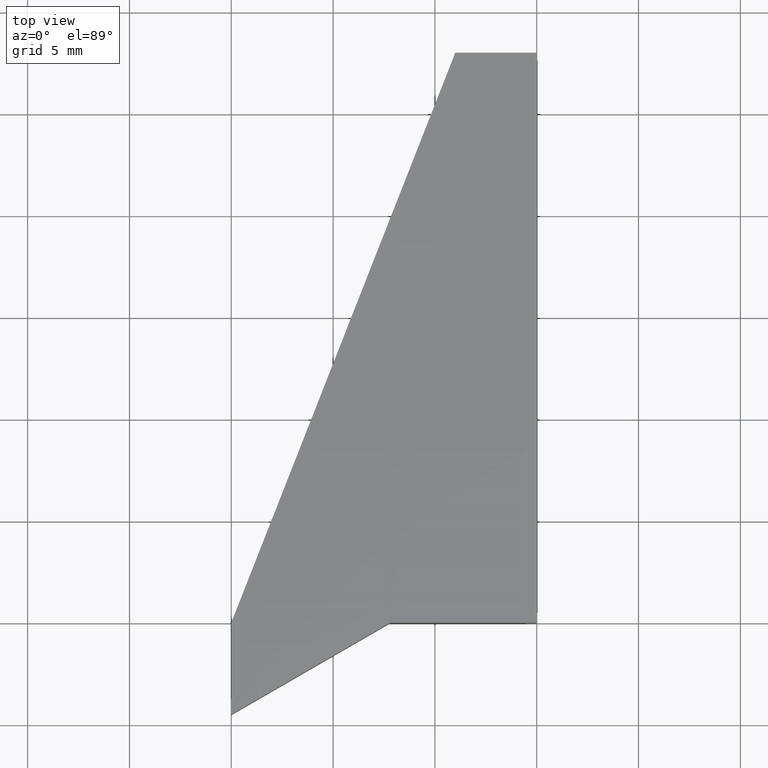
[diagram: clean part render]
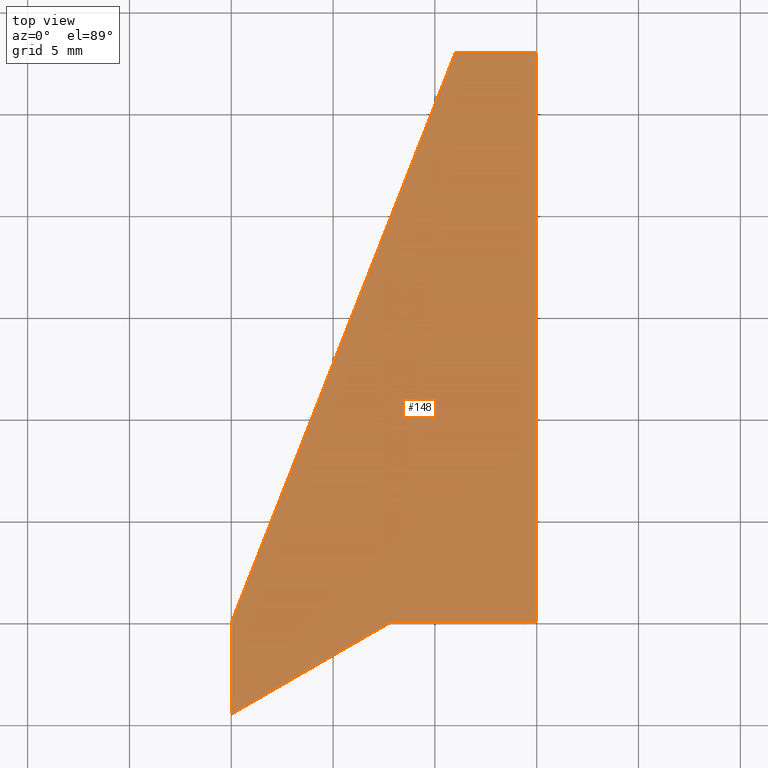
[diagram: same view with one face highlighted and labeled with its STEP entity id]
A machine part, top view. The second image highlights one B-rep face of the part: STEP entity #148.
In plain terms, the highlighted planar face has unit normal (0, 0, 1).
Its self-contained STEP definition (entity closure, byte-faithful):
#22=FACE_OUTER_BOUND('',#30,.T.);
#30=EDGE_LOOP('',(#127,#128,#129,#130,#131,#132));
#37=LINE('',#233,#55);
#40=LINE('',#238,#58);
#42=LINE('',#242,#60);
#44=LINE('',#246,#62);
#46=LINE('',#250,#64);
#48=LINE('',#253,#66);
#55=VECTOR('',#192,10.);
#58=VECTOR('',#197,10.);
#60=VECTOR('',#201,10.);
#62=VECTOR('',#205,10.);
#64=VECTOR('',#209,10.);
#66=VECTOR('',#213,10.);
#73=VERTEX_POINT('',#231);
#74=VERTEX_POINT('',#232);
#75=VERTEX_POINT('',#237);
#76=VERTEX_POINT('',#241);
#77=VERTEX_POINT('',#245);
#78=VERTEX_POINT('',#249);
#85=EDGE_CURVE('',#73,#74,#37,.T.);
#88=EDGE_CURVE('',#74,#75,#40,.T.);
#90=EDGE_CURVE('',#75,#76,#42,.T.);
#92=EDGE_CURVE('',#76,#77,#44,.T.);
#94=EDGE_CURVE('',#77,#78,#46,.T.);
#96=EDGE_CURVE('',#78,#73,#48,.T.);
#127=ORIENTED_EDGE('',*,*,#85,.F.);
#128=ORIENTED_EDGE('',*,*,#96,.F.);
#129=ORIENTED_EDGE('',*,*,#94,.F.);
#130=ORIENTED_EDGE('',*,*,#92,.F.);
#131=ORIENTED_EDGE('',*,*,#90,.F.);
#132=ORIENTED_EDGE('',*,*,#88,.F.);
#140=PLANE('',#179);
#148=ADVANCED_FACE('',(#22),#140,.T.);
#179=AXIS2_PLACEMENT_3D('',#254,#214,#215);
#192=DIRECTION('',(-1.,-1.54197642309049E-16,0.));
#197=DIRECTION('',(-0.866025403784439,-0.5,0.));
#201=DIRECTION('',(0.,1.,0.));
#205=DIRECTION('',(0.365689144775054,0.930737046320651,0.));
#209=DIRECTION('',(1.,0.,0.));
#213=DIRECTION('',(6.93971975526328E-17,-1.,0.));
#214=DIRECTION('center_axis',(0.,0.,1.));
#215=DIRECTION('ref_axis',(1.,0.,0.));
#231=CARTESIAN_POINT('',(1.11022302462516E-15,1.11022302462516E-15,1.5));
#232=CARTESIAN_POINT('',(-7.2,0.,1.5));
#233=CARTESIAN_POINT('',(1.11022302462516E-15,1.11022302462516E-15,1.5));
#237=CARTESIAN_POINT('',(-15.,-4.50333209967908,1.5));
#238=CARTESIAN_POINT('',(-7.2,0.,1.5));
#241=CARTESIAN_POINT('',(-15.,-0.0033320996790781,1.5));
#242=CARTESIAN_POINT('',(-15.,-4.50333209967908,1.5));
#245=CARTESIAN_POINT('',(-3.99872300755724,27.9966679003209,1.5));
#246=CARTESIAN_POINT('',(-15.,-0.0033320996790781,1.5));
#249=CARTESIAN_POINT('',(-8.32667268468867E-16,27.9966679003209,1.5));
#250=CARTESIAN_POINT('',(-3.99872300755724,27.9966679003209,1.5));
#253=CARTESIAN_POINT('',(-8.32667268468867E-16,27.9966679003209,1.5));
#254=CARTESIAN_POINT('Origin',(-5.88464466881287,10.8051094182979,1.5));